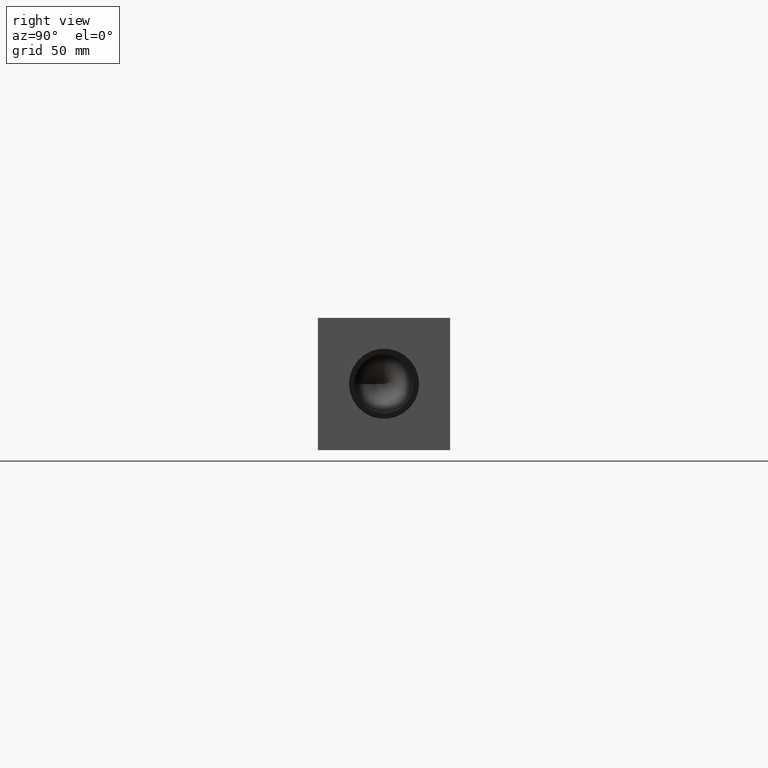
[diagram: clean part render]
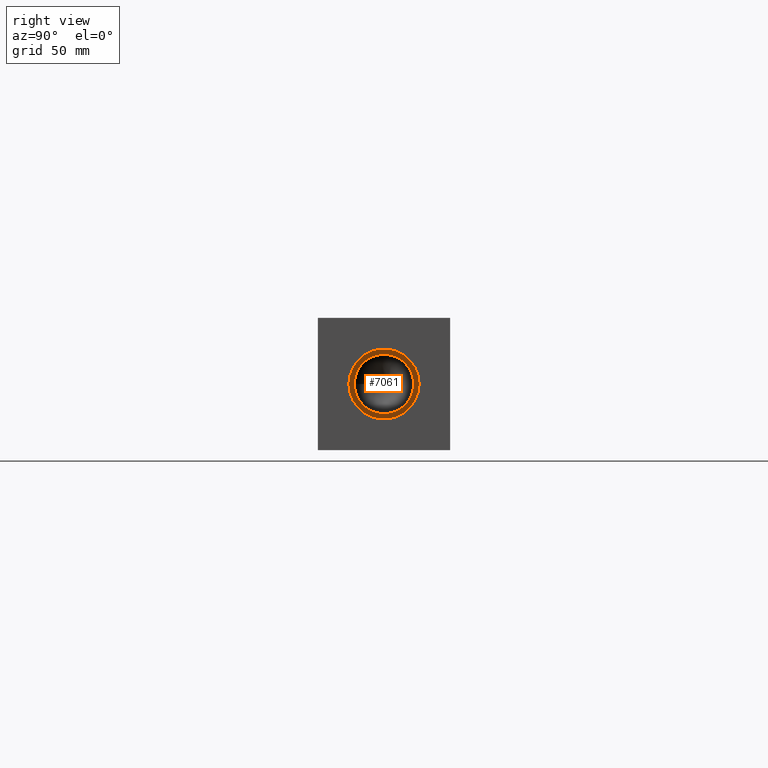
[diagram: same view with one face highlighted and labeled with its STEP entity id]
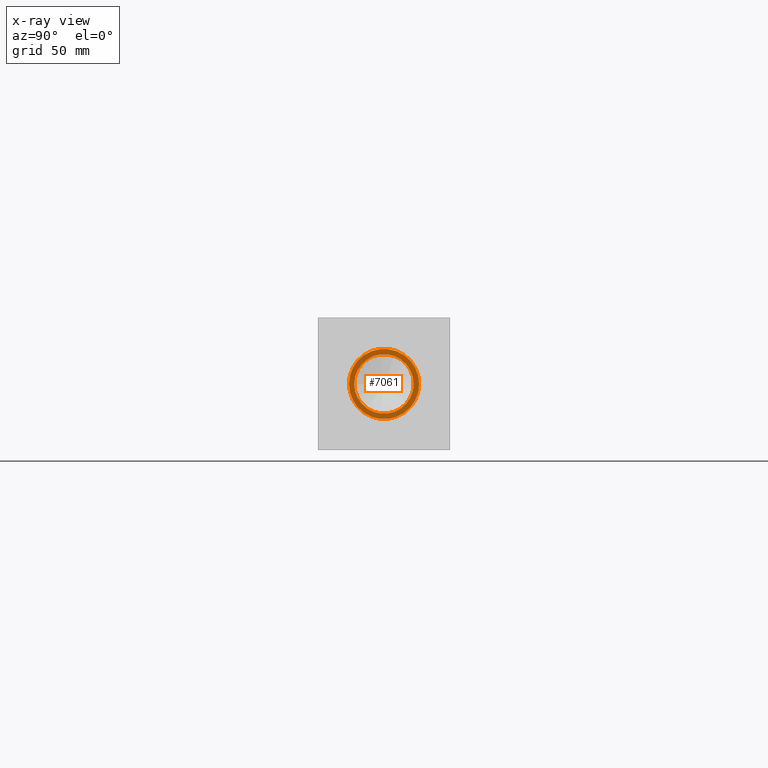
[diagram: x-ray of the same camera — body ghosted, the highlighted face saturated]
A machine part, right view. The second image highlights one B-rep face of the part: STEP entity #7061.
The next image is the same camera in x-ray: the body ghosted, the highlighted face saturated — about 0% of this face is hidden behind the body in this view.
In plain terms, the highlighted planar face has unit normal (1, 0, 0).
Its self-contained STEP definition (entity closure, byte-faithful):
#126=CIRCLE('',#7425,16.8529);
#127=CIRCLE('',#7426,16.8529);
#128=CIRCLE('',#7427,14.2875);
#180=FACE_BOUND('',#1173,.T.);
#419=PLANE('',#7424);
#772=FACE_OUTER_BOUND('',#1172,.T.);
#1172=EDGE_LOOP('',(#6266,#6267));
#1173=EDGE_LOOP('',(#6268));
#3428=VERTEX_POINT('',#11893);
#3429=VERTEX_POINT('',#11894);
#3430=VERTEX_POINT('',#11897);
#4384=EDGE_CURVE('',#3428,#3429,#126,.T.);
#4385=EDGE_CURVE('',#3429,#3428,#127,.T.);
#4386=EDGE_CURVE('',#3430,#3430,#128,.T.);
#6266=ORIENTED_EDGE('',*,*,#4384,.T.);
#6267=ORIENTED_EDGE('',*,*,#4385,.T.);
#6268=ORIENTED_EDGE('',*,*,#4386,.F.);
#7061=ADVANCED_FACE('',(#772,#180),#419,.T.);
#7424=AXIS2_PLACEMENT_3D('',#11892,#8822,#8823);
#7425=AXIS2_PLACEMENT_3D('',#11895,#8824,#8825);
#7426=AXIS2_PLACEMENT_3D('',#11896,#8826,#8827);
#7427=AXIS2_PLACEMENT_3D('',#11898,#8828,#8829);
#8822=DIRECTION('center_axis',(1.,0.,0.));
#8823=DIRECTION('ref_axis',(0.,1.,0.));
#8824=DIRECTION('center_axis',(1.,0.,0.));
#8825=DIRECTION('ref_axis',(0.,1.,0.));
#8826=DIRECTION('center_axis',(1.,0.,0.));
#8827=DIRECTION('ref_axis',(0.,1.,0.));
#8828=DIRECTION('center_axis',(1.,0.,0.));
#8829=DIRECTION('ref_axis',(0.,1.,0.));
#11892=CARTESIAN_POINT('Origin',(320.7258,31.75,31.75));
#11893=CARTESIAN_POINT('',(320.7258,48.6029,31.75));
#11894=CARTESIAN_POINT('',(320.7258,14.8971,31.75));
#11895=CARTESIAN_POINT('Origin',(320.7258,31.75,31.75));
#11896=CARTESIAN_POINT('Origin',(320.7258,31.75,31.75));
#11897=CARTESIAN_POINT('',(320.7258,17.4625,31.75));
#11898=CARTESIAN_POINT('Origin',(320.7258,31.75,31.75));